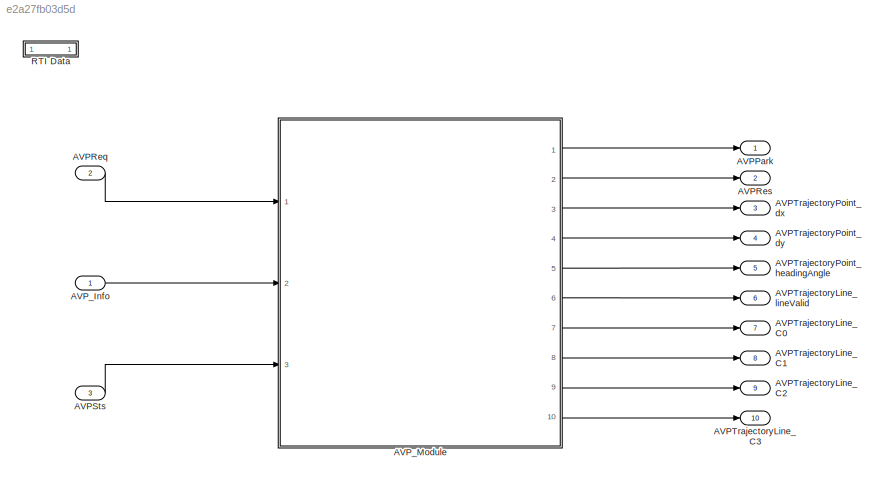
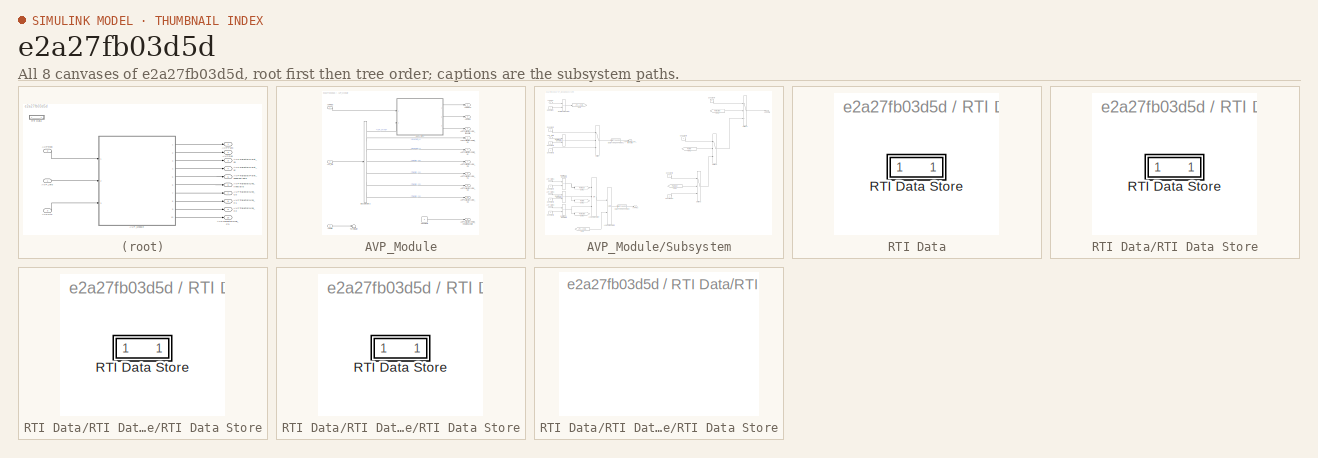
[diagram: thumbnail index - all 8 canvases of the model, root first then tree order]
MODEL slx_e2a27fb03d5d
KIND model
CONFIG AbsTol = auto
CONFIG EnableMultiTasking = off
CONFIG FixedStep = 0.01
CONFIG MaxStep = auto
CONFIG MinStep = auto
CONFIG PostLoadFcn = if any(exist('dsrtsu_mdlpostloadfcn', 'file') ~= 0), dsrtsu_mdlpostloadfcn('Execute', bdroot); end
CONFIG RelTol = 1e-3
CONFIG SampleTimeConstraint = Unconstrained
CONFIG Solver = FixedStepDiscrete
CONFIG SolverName = FixedStepDiscrete
CONFIG StartTime = 0.0
CONFIG StopTime = inf
BLOCK [Outport] AVPPark
  IconDisplay = Port number
  OutDataTypeStr = uint8
BLOCK [Inport] AVPReq
  IconDisplay = Port number
  OutDataTypeStr = uint8
  Port = 2
BLOCK [Outport] AVPRes
  IconDisplay = Port number
  OutDataTypeStr = uint8
  Port = 2
BLOCK [Inport] AVPSts
  IconDisplay = Port number
  OutDataTypeStr = uint8
  Port = 3
BLOCK [Outport] AVPTrajectoryLine_C0
  IconDisplay = Port number
  Port = 7
BLOCK [Outport] AVPTrajectoryLine_C1
  IconDisplay = Port number
  Port = 8
BLOCK [Outport] AVPTrajectoryLine_C2
  IconDisplay = Port number
  Port = 9
BLOCK [Outport] AVPTrajectoryLine_C3
  IconDisplay = Port number
  Port = 10
BLOCK [Outport] AVPTrajectoryLine_lineValid
  IconDisplay = Port number
  OutDataTypeStr = boolean
  Port = 6
BLOCK [Outport] AVPTrajectoryPoint_dx
  IconDisplay = Port number
  Port = 3
BLOCK [Outport] AVPTrajectoryPoint_dy
  IconDisplay = Port number
  Port = 4
BLOCK [Outport] AVPTrajectoryPoint_headingAngle
  IconDisplay = Port number
  Port = 5
BLOCK [Inport] AVP_Info
  BusOutputAsStruct = on
  IconDisplay = Port number
  OutDataTypeStr = Bus: AVP_OUTPUT_ST
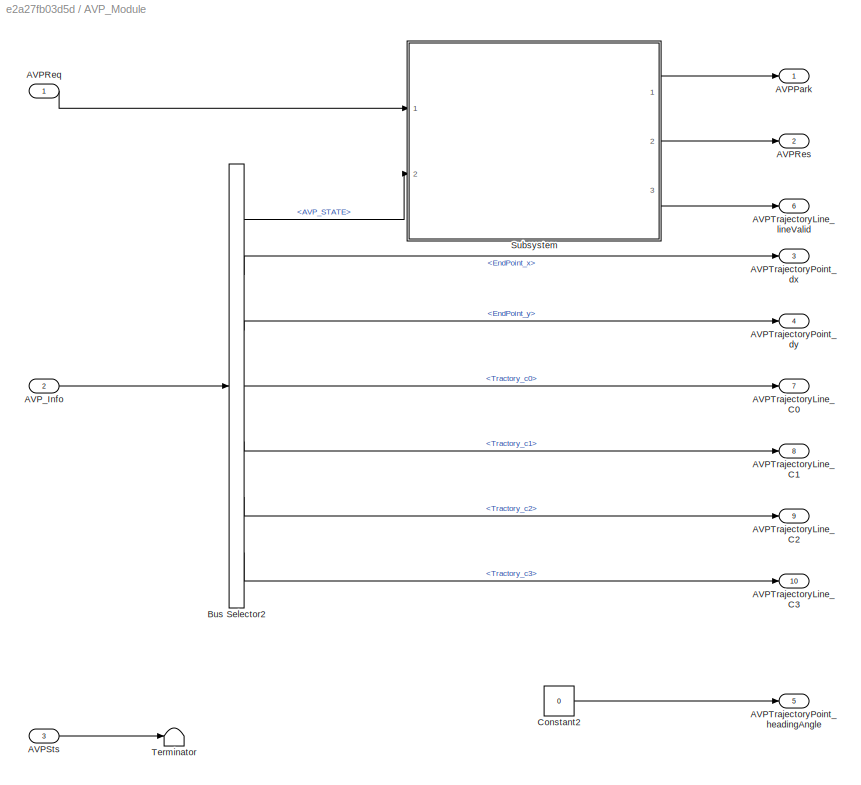
BLOCK [SubSystem] AVP_Module
  Ports = [3, 10]
  RequestExecContextInheritance = off
BLOCK [Outport] AVP_Module/AVPPark
  IconDisplay = Port number
  OutDataTypeStr = uint8
BLOCK [Inport] AVP_Module/AVPReq
  IconDisplay = Port number
  OutDataTypeStr = uint8
BLOCK [Outport] AVP_Module/AVPRes
  IconDisplay = Port number
  OutDataTypeStr = uint8
  Port = 2
BLOCK [Inport] AVP_Module/AVPSts
  IconDisplay = Port number
  OutDataTypeStr = uint8
  Port = 3
BLOCK [Outport] AVP_Module/AVPTrajectoryLine_C0
  IconDisplay = Port number
  Port = 7
BLOCK [Outport] AVP_Module/AVPTrajectoryLine_C1
  IconDisplay = Port number
  Port = 8
BLOCK [Outport] AVP_Module/AVPTrajectoryLine_C2
  IconDisplay = Port number
  Port = 9
BLOCK [Outport] AVP_Module/AVPTrajectoryLine_C3
  IconDisplay = Port number
  Port = 10
BLOCK [Outport] AVP_Module/AVPTrajectoryLine_lineValid
  IconDisplay = Port number
  OutDataTypeStr = boolean
  Port = 6
BLOCK [Outport] AVP_Module/AVPTrajectoryPoint_dx
  IconDisplay = Port number
  Port = 3
BLOCK [Outport] AVP_Module/AVPTrajectoryPoint_dy
  IconDisplay = Port number
  Port = 4
BLOCK [Outport] AVP_Module/AVPTrajectoryPoint_headingAngle
  IconDisplay = Port number
  Port = 5
BLOCK [Inport] AVP_Module/AVP_Info
  IconDisplay = Port number
  OutDataTypeStr = Bus: AVP_OUTPUT_ST
  Port = 2
BLOCK [BusSelector] AVP_Module/Bus Selector2
  OutputAsBus = off
  OutputSignals = AVP_STATE,EndPoint_x,EndPoint_y,Tractory_c0,Tractory_c1,Tractory_c2,Tractory_c3
  Ports = [1, 7]
BLOCK [Constant] AVP_Module/Constant2
  Value = 0
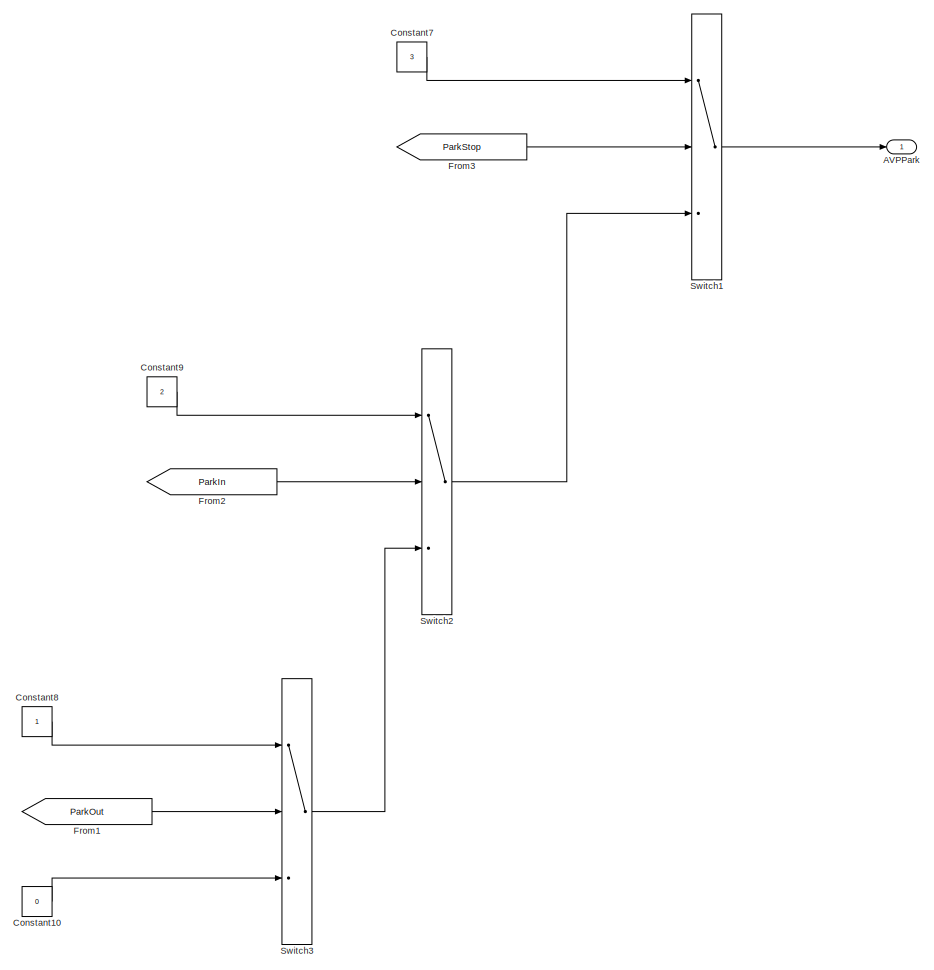
[diagram: AVP_Module/Subsystem - part 1/2, right side, full height]
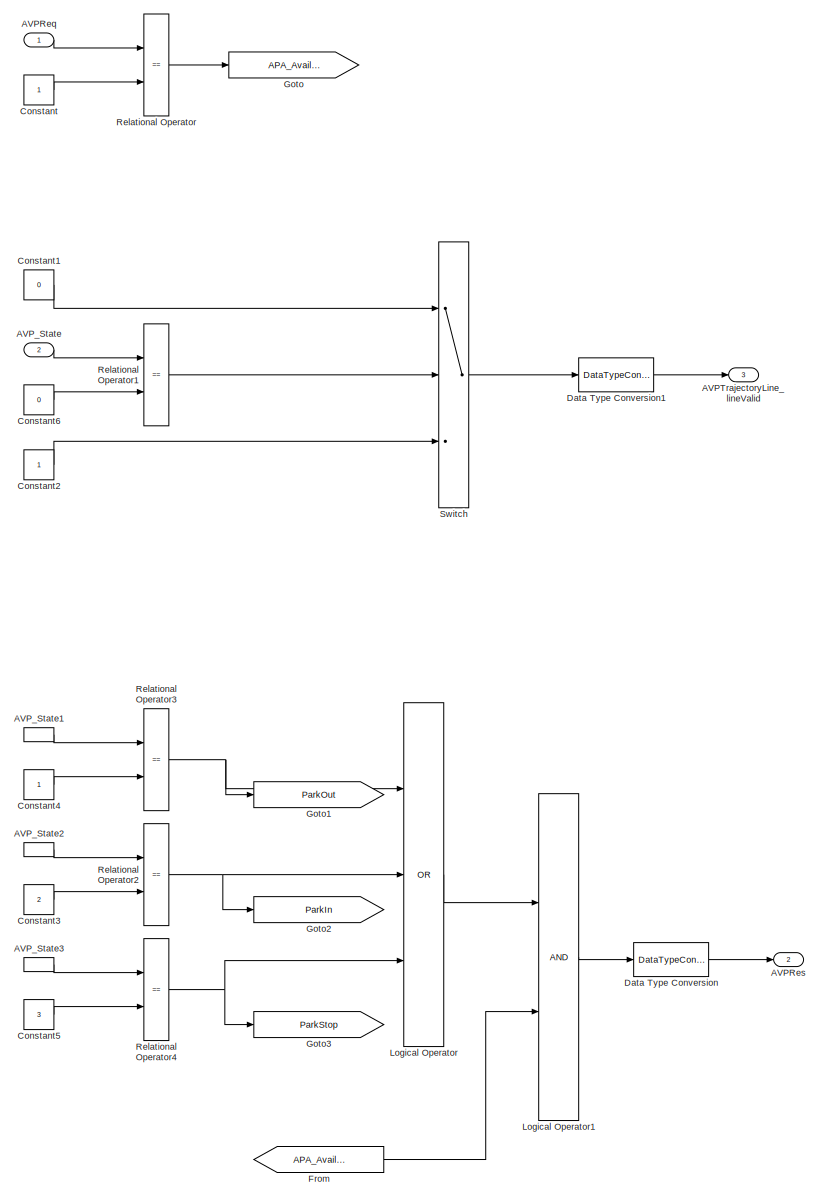
[diagram: AVP_Module/Subsystem - part 2/2, left side, full height]
BLOCK [SubSystem] AVP_Module/Subsystem
  Ports = [2, 3]
  RequestExecContextInheritance = off
BLOCK [Outport] AVP_Module/Subsystem/AVPPark
  IconDisplay = Port number
  OutDataTypeStr = uint8
BLOCK [Inport] AVP_Module/Subsystem/AVPReq
  IconDisplay = Port number
  OutDataTypeStr = uint8
BLOCK [Outport] AVP_Module/Subsystem/AVPRes
  IconDisplay = Port number
  OutDataTypeStr = uint8
  Port = 2
BLOCK [Outport] AVP_Module/Subsystem/AVPTrajectoryLine_lineValid
  IconDisplay = Port number
  OutDataTypeStr = boolean
  Port = 3
BLOCK [Inport] AVP_Module/Subsystem/AVP_State
  IconDisplay = Port number
  Port = 2
BLOCK [InportShadow] AVP_Module/Subsystem/AVP_State1
  IconDisplay = Port number
  Port = 2
BLOCK [InportShadow] AVP_Module/Subsystem/AVP_State2
  IconDisplay = Port number
  Port = 2
BLOCK [InportShadow] AVP_Module/Subsystem/AVP_State3
  IconDisplay = Port number
  Port = 2
BLOCK [Constant] AVP_Module/Subsystem/Constant
  OutDataTypeStr = uint8
BLOCK [Constant] AVP_Module/Subsystem/Constant1
  OutDataTypeStr = uint8
  Value = 0
BLOCK [Constant] AVP_Module/Subsystem/Constant10
  OutDataTypeStr = uint8
  Value = 0
BLOCK [Constant] AVP_Module/Subsystem/Constant2
  OutDataTypeStr = uint8
BLOCK [Constant] AVP_Module/Subsystem/Constant3
  OutDataTypeStr = uint8
  Value = 2
BLOCK [Constant] AVP_Module/Subsystem/Constant4
  OutDataTypeStr = uint8
BLOCK [Constant] AVP_Module/Subsystem/Constant5
  OutDataTypeStr = uint8
  Value = 3
BLOCK [Constant] AVP_Module/Subsystem/Constant6
  OutDataTypeStr = uint8
  Value = 0
BLOCK [Constant] AVP_Module/Subsystem/Constant7
  OutDataTypeStr = uint8
  Value = 3
BLOCK [Constant] AVP_Module/Subsystem/Constant8
  OutDataTypeStr = uint8
BLOCK [Constant] AVP_Module/Subsystem/Constant9
  OutDataTypeStr = uint8
  Value = 2
BLOCK [DataTypeConversion] AVP_Module/Subsystem/Data Type Conversion
  OutDataTypeStr = uint8
  RndMeth = Floor
  SaturateOnIntegerOverflow = off
BLOCK [DataTypeConversion] AVP_Module/Subsystem/Data Type Conversion1
  OutDataTypeStr = boolean
  RndMeth = Floor
  SaturateOnIntegerOverflow = off
BLOCK [From] AVP_Module/Subsystem/From
  GotoTag = APA_Available
BLOCK [From] AVP_Module/Subsystem/From1
  GotoTag = ParkOut
BLOCK [From] AVP_Module/Subsystem/From2
  GotoTag = ParkIn
BLOCK [From] AVP_Module/Subsystem/From3
  GotoTag = ParkStop
BLOCK [Goto] AVP_Module/Subsystem/Goto
  GotoTag = APA_Available
BLOCK [Goto] AVP_Module/Subsystem/Goto1
  GotoTag = ParkOut
BLOCK [Goto] AVP_Module/Subsystem/Goto2
  GotoTag = ParkIn
BLOCK [Goto] AVP_Module/Subsystem/Goto3
  GotoTag = ParkStop
BLOCK [Logic] AVP_Module/Subsystem/Logical Operator
  AllPortsSameDT = off
  Inputs = 3
  Operator = OR
  OutDataTypeStr = boolean
  Ports = [3, 1]
BLOCK [Logic] AVP_Module/Subsystem/Logical Operator1
  AllPortsSameDT = off
  OutDataTypeStr = boolean
  Ports = [2, 1]
BLOCK [RelationalOperator] AVP_Module/Subsystem/Relational Operator
  InputSameDT = off
  Operator = ==
  OutDataTypeStr = boolean
  Ports = [2, 1]
  RndMeth = Simplest
BLOCK [RelationalOperator] AVP_Module/Subsystem/Relational Operator1
  InputSameDT = off
  Operator = ==
  OutDataTypeStr = boolean
  Ports = [2, 1]
  RndMeth = Simplest
BLOCK [RelationalOperator] AVP_Module/Subsystem/Relational Operator2
  InputSameDT = off
  Operator = ==
  OutDataTypeStr = boolean
  Ports = [2, 1]
  RndMeth = Simplest
BLOCK [RelationalOperator] AVP_Module/Subsystem/Relational Operator3
  InputSameDT = off
  Operator = ==
  OutDataTypeStr = boolean
  Ports = [2, 1]
  RndMeth = Simplest
BLOCK [RelationalOperator] AVP_Module/Subsystem/Relational Operator4
  InputSameDT = off
  Operator = ==
  OutDataTypeStr = boolean
  Ports = [2, 1]
  RndMeth = Simplest
BLOCK [Switch] AVP_Module/Subsystem/Switch
  Criteria = u2 > Threshold
  InputSameDT = off
  SaturateOnIntegerOverflow = off
BLOCK [Switch] AVP_Module/Subsystem/Switch1
  Criteria = u2 > Threshold
  InputSameDT = off
  SaturateOnIntegerOverflow = off
BLOCK [Switch] AVP_Module/Subsystem/Switch2
  Criteria = u2 > Threshold
  InputSameDT = off
  SaturateOnIntegerOverflow = off
BLOCK [Switch] AVP_Module/Subsystem/Switch3
  Criteria = u2 > Threshold
  InputSameDT = off
  SaturateOnIntegerOverflow = off
BLOCK [Terminator] AVP_Module/Terminator
BLOCK [SubSystem] RTI Data
  CopyFcn = if exist('rtidc'), try,  rtidc('DataHostBlockClbCopy', gcbh); catch, disp(['Warning: ''CopyFcn'' for RTI Data block failed: ' lasterr]); end, end,
  DeleteFcn = if exist('rtidc'), try,  rtidc('DataHostBlockClbDelete', gcbh); catch, disp(['Warning: ''DeleteFcn'' for RTI Data block failed: ' lasterr]); end, end,
  LoadFcn = if exist('rtidc'), try,  rtidc('DataHostBlockClbLoad', gcbh); catch, disp(['Warning: ''LoadFcn'' for RTI Data block failed: ' lasterr]); end, end,
  ModelCloseFcn = if exist('rtidc'), try,  rtidc('DataHostBlockClbModelClose', gcbh); catch, disp(['Warning: ''ModelCloseFcn'' for RTI Data block failed: ' lasterr]); end, end,
  NameChangeFcn = if exist('rtidc'), try,  rtidc('DataHostBlockClbNameChange', gcbh); catch, disp(['Warning: ''NameChangeFcn'' for RTI Data block failed: ' lasterr]); end, end,
  Ports = []
  PostSaveFcn = if exist('rtidc'), try,  rtidc('DataHostBlockClbPostSave', gcbh); catch, disp(['Warning: ''PostSaveFcn'' for RTI Data block failed: ' lasterr]); end, end,
  PreSaveFcn = if exist('rtidc'), try,  rtidc('DataHostBlockClbPreSave', gcbh); catch, disp(['Warning: ''PreSaveFcn'' for RTI Data block failed: ' lasterr]); end, end,
  RequestExecContextInheritance = off
  Tag = struct('RTIDataServer',struct('RTIDataServerVs','2','RTIModelDescription','struct(''main'',''AVP_Main'',''sub'',''AVP_Main'',''isMp'',0)'))
BLOCK [SubSystem] RTI Data/RTI Data Store
  Ports = []
  RequestExecContextInheritance = off
  Tag = struct('private',struct('version',struct('dsVer',uint32(2),'dsVerCreation',uint32(2),'RTI',struct('ver','7.12','type','RTI1401')),'access',struct('type','Model','isPerm',1,'created',['11-Dec-2020 17:36:09'],'modified',['17-Mar-2021 15:49:09'],'location','')),'public',struct('main',struct('data',[]),'sub',struct('name',{{'AVP_Main'}},'data',{{struct('TH',struct('thTaskInfo',struct('taskType',{'TIME...<+882ch>
BLOCK [SubSystem] RTI Data/RTI Data Store/RTI Data Store
  Ports = []
  RequestExecContextInheritance = off
BLOCK [SubSystem] RTI Data/RTI Data Store/RTI Data Store/RTI Data Store
  Ports = []
  RequestExecContextInheritance = off
BLOCK [SubSystem] RTI Data/RTI Data Store/RTI Data Store/RTI Data Store/RTI Data Store
  Ports = []
  RequestExecContextInheritance = off
LINE AVPReq:1 -> AVP_Module:1
LINE AVPSts:1 -> AVP_Module:3
LINE AVP_Info:1 -> AVP_Module:2
LINE AVP_Module/AVPReq:1 -> AVP_Module/Subsystem:1
LINE AVP_Module/AVPSts:1 -> AVP_Module/Terminator:1
LINE AVP_Module/AVP_Info:1 -> AVP_Module/Bus Selector2:1
LINE AVP_Module/Bus Selector2:1 -> AVP_Module/Subsystem:2
LINE AVP_Module/Bus Selector2:2 -> AVP_Module/AVPTrajectoryPoint_dx:1
LINE AVP_Module/Bus Selector2:3 -> AVP_Module/AVPTrajectoryPoint_dy:1
LINE AVP_Module/Bus Selector2:4 -> AVP_Module/AVPTrajectoryLine_C0:1
LINE AVP_Module/Bus Selector2:5 -> AVP_Module/AVPTrajectoryLine_C1:1
LINE AVP_Module/Bus Selector2:6 -> AVP_Module/AVPTrajectoryLine_C2:1
LINE AVP_Module/Bus Selector2:7 -> AVP_Module/AVPTrajectoryLine_C3:1
LINE AVP_Module/Constant2:1 -> AVP_Module/AVPTrajectoryPoint_headingAngle:1
LINE AVP_Module/Subsystem/AVPReq:1 -> AVP_Module/Subsystem/Relational Operator:1
LINE AVP_Module/Subsystem/AVP_State1:1 -> AVP_Module/Subsystem/Relational Operator3:1
LINE AVP_Module/Subsystem/AVP_State2:1 -> AVP_Module/Subsystem/Relational Operator2:1
LINE AVP_Module/Subsystem/AVP_State3:1 -> AVP_Module/Subsystem/Relational Operator4:1
LINE AVP_Module/Subsystem/AVP_State:1 -> AVP_Module/Subsystem/Relational Operator1:1
LINE AVP_Module/Subsystem/Constant10:1 -> AVP_Module/Subsystem/Switch3:3
LINE AVP_Module/Subsystem/Constant1:1 -> AVP_Module/Subsystem/Switch:1
LINE AVP_Module/Subsystem/Constant2:1 -> AVP_Module/Subsystem/Switch:3
LINE AVP_Module/Subsystem/Constant3:1 -> AVP_Module/Subsystem/Relational Operator2:2
LINE AVP_Module/Subsystem/Constant4:1 -> AVP_Module/Subsystem/Relational Operator3:2
LINE AVP_Module/Subsystem/Constant5:1 -> AVP_Module/Subsystem/Relational Operator4:2
LINE AVP_Module/Subsystem/Constant6:1 -> AVP_Module/Subsystem/Relational Operator1:2
LINE AVP_Module/Subsystem/Constant7:1 -> AVP_Module/Subsystem/Switch1:1
LINE AVP_Module/Subsystem/Constant8:1 -> AVP_Module/Subsystem/Switch3:1
LINE AVP_Module/Subsystem/Constant9:1 -> AVP_Module/Subsystem/Switch2:1
LINE AVP_Module/Subsystem/Constant:1 -> AVP_Module/Subsystem/Relational Operator:2
LINE AVP_Module/Subsystem/Data Type Conversion1:1 -> AVP_Module/Subsystem/AVPTrajectoryLine_lineValid:1
LINE AVP_Module/Subsystem/Data Type Conversion:1 -> AVP_Module/Subsystem/AVPRes:1
LINE AVP_Module/Subsystem/From1:1 -> AVP_Module/Subsystem/Switch3:2
LINE AVP_Module/Subsystem/From2:1 -> AVP_Module/Subsystem/Switch2:2
LINE AVP_Module/Subsystem/From3:1 -> AVP_Module/Subsystem/Switch1:2
LINE AVP_Module/Subsystem/From:1 -> AVP_Module/Subsystem/Logical Operator1:2
LINE AVP_Module/Subsystem/Logical Operator1:1 -> AVP_Module/Subsystem/Data Type Conversion:1
LINE AVP_Module/Subsystem/Logical Operator:1 -> AVP_Module/Subsystem/Logical Operator1:1
LINE AVP_Module/Subsystem/Relational Operator1:1 -> AVP_Module/Subsystem/Switch:2
NET AVP_Module/Subsystem/Relational Operator2:1 -> AVP_Module/Subsystem/Goto2:1, AVP_Module/Subsystem/Logical Operator:2
NET AVP_Module/Subsystem/Relational Operator3:1 -> AVP_Module/Subsystem/Goto1:1, AVP_Module/Subsystem/Logical Operator:1
NET AVP_Module/Subsystem/Relational Operator4:1 -> AVP_Module/Subsystem/Goto3:1, AVP_Module/Subsystem/Logical Operator:3
LINE AVP_Module/Subsystem/Relational Operator:1 -> AVP_Module/Subsystem/Goto:1
LINE AVP_Module/Subsystem/Switch1:1 -> AVP_Module/Subsystem/AVPPark:1
LINE AVP_Module/Subsystem/Switch2:1 -> AVP_Module/Subsystem/Switch1:3
LINE AVP_Module/Subsystem/Switch3:1 -> AVP_Module/Subsystem/Switch2:3
LINE AVP_Module/Subsystem/Switch:1 -> AVP_Module/Subsystem/Data Type Conversion1:1
LINE AVP_Module/Subsystem:1 -> AVP_Module/AVPPark:1
LINE AVP_Module/Subsystem:2 -> AVP_Module/AVPRes:1
LINE AVP_Module/Subsystem:3 -> AVP_Module/AVPTrajectoryLine_lineValid:1
LINE AVP_Module:1 -> AVPPark:1
LINE AVP_Module:10 -> AVPTrajectoryLine_C3:1
LINE AVP_Module:2 -> AVPRes:1
LINE AVP_Module:3 -> AVPTrajectoryPoint_dx:1
LINE AVP_Module:4 -> AVPTrajectoryPoint_dy:1
LINE AVP_Module:5 -> AVPTrajectoryPoint_headingAngle:1
LINE AVP_Module:6 -> AVPTrajectoryLine_lineValid:1
LINE AVP_Module:7 -> AVPTrajectoryLine_C0:1
LINE AVP_Module:8 -> AVPTrajectoryLine_C1:1
LINE AVP_Module:9 -> AVPTrajectoryLine_C2:1
note: NET lines group one-source signal fan-out (src -> all destinations, sorted); 1:1 wires keep LINE
